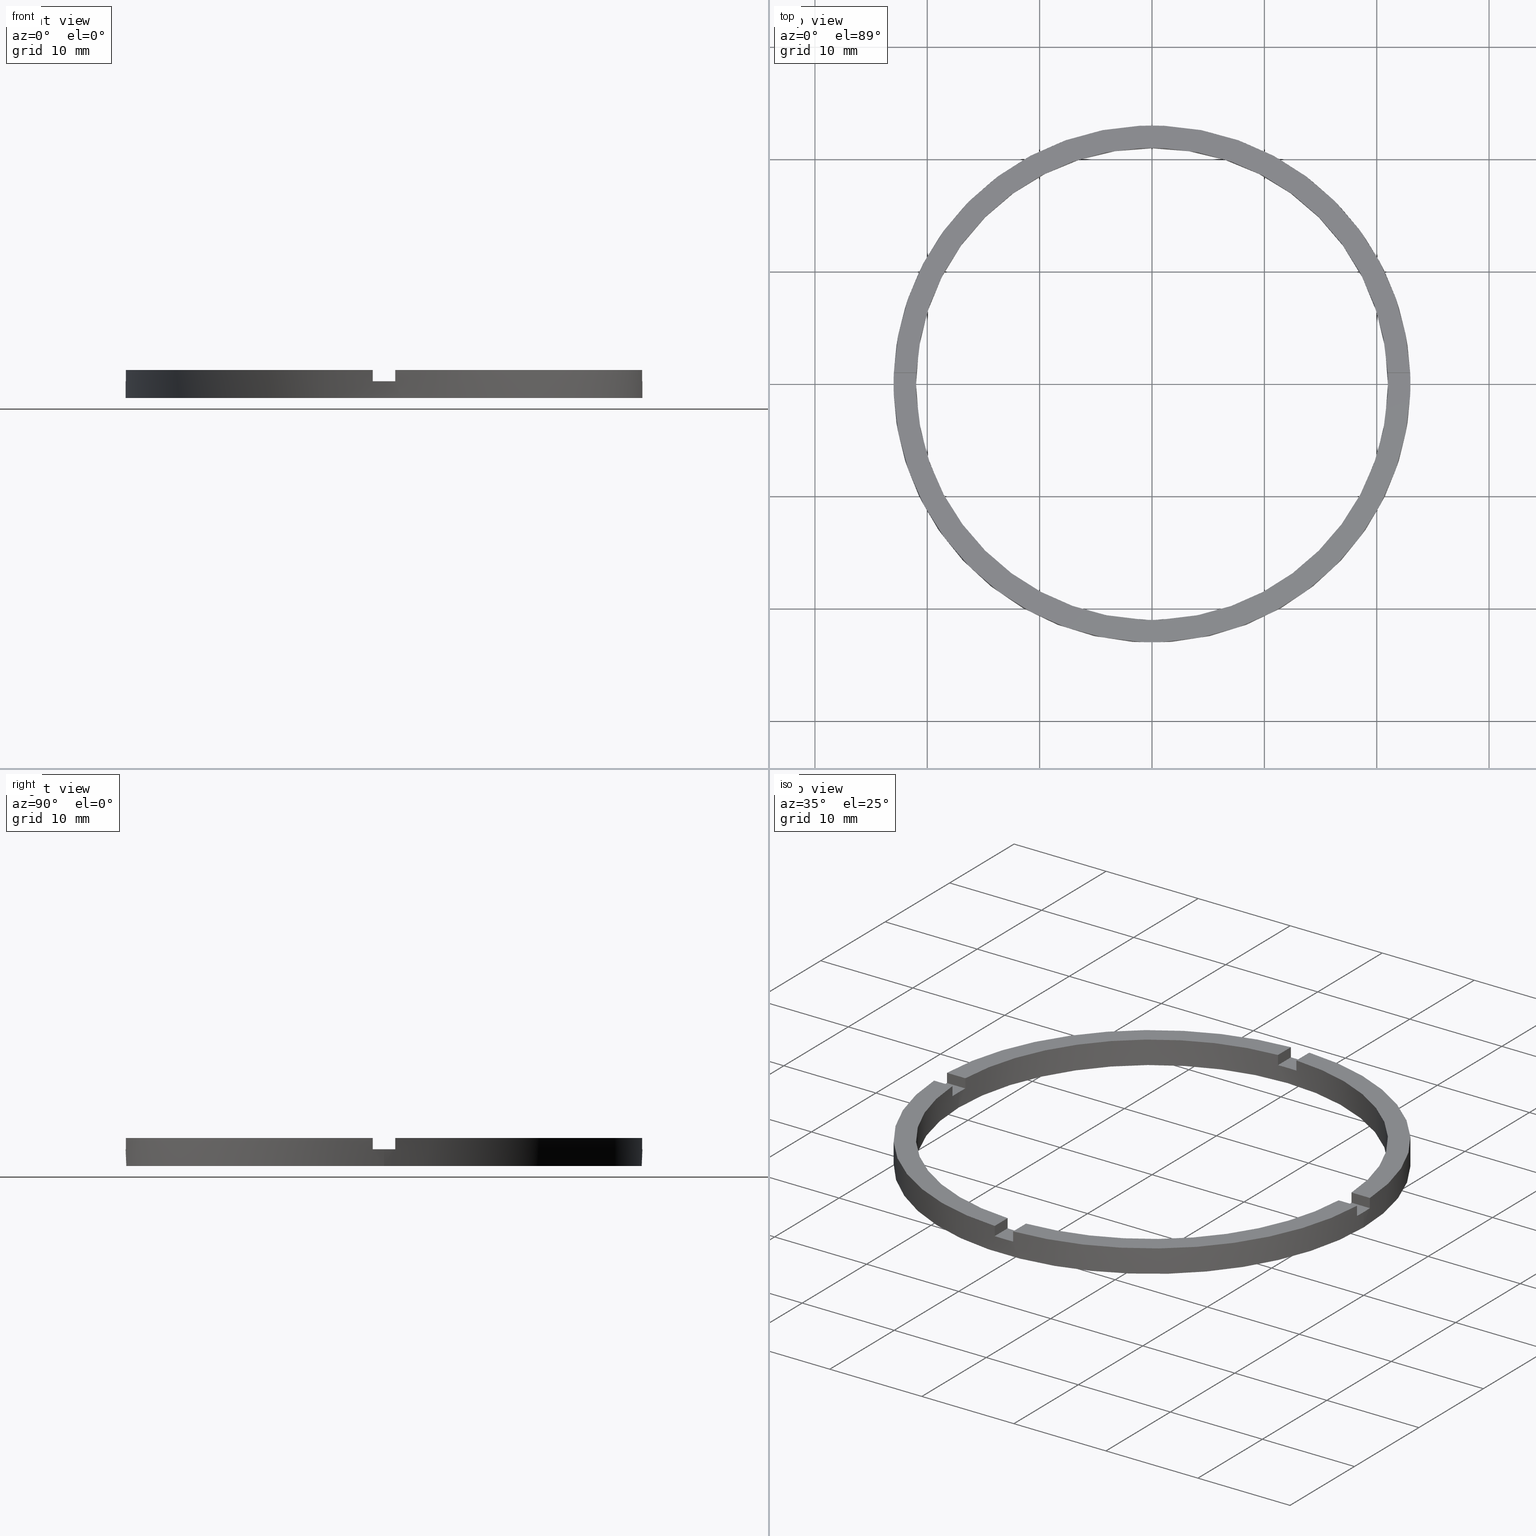
[diagram: canonical four-view strip — front | top / right | iso, engineering-drawing reading convention]
A machine part, canonical four-view strip (front | top / right | iso — engineering-drawing reading convention). The complete STEP part file that produces these views, byte-faithful:
ISO-10303-21;
HEADER;
FILE_DESCRIPTION (( 'STEP AP203' ),
    '1' );
FILE_NAME ('514096.step',
    '2024-12-26T02:37:08',
    ( 'MSI' ),
    ( '' ),
    'SwSTEP 2.0',
    'SolidWorks 2020',
    '' );
FILE_SCHEMA (( 'CONFIG_CONTROL_DESIGN' ));
ENDSEC;

DATA;
#1 = DIRECTION ( 'NONE',  ( -1.000000000000000000, -4.336808689942018352E-17, -0.000000000000000000 ) ) ;
#2 = ORIENTED_EDGE ( 'NONE', *, *, #365, .F. ) ;
#3 = DIRECTION ( 'NONE',  ( 1.000000000000000000, 0.000000000000000000, 0.000000000000000000 ) ) ;
#4 = VERTEX_POINT ( 'NONE', #769 ) ;
#5 = ORIENTED_EDGE ( 'NONE', *, *, #530, .F. ) ;
#6 = DIRECTION ( 'NONE',  ( 1.000000000000000000, 0.000000000000000000, -0.000000000000000000 ) ) ;
#7 = CARTESIAN_POINT ( 'NONE',  ( 0.000000000000000000, 0.000000000000000000, 1.500000000000000000 ) ) ;
#8 = ORIENTED_EDGE ( 'NONE', *, *, #148, .T. ) ;
#9 = CARTESIAN_POINT ( 'NONE',  ( 12.99999999999999467, -1.000000000000158318, 1.500000000000000000 ) ) ;
#10 = ORIENTED_EDGE ( 'NONE', *, *, #23, .T. ) ;
#11 = EDGE_LOOP ( 'NONE', ( #574, #739, #545, #306, #509, #579, #757, #229, #475, #28, #548, #562 ) ) ;
#12 = EDGE_CURVE ( 'NONE', #748, #541, #664, .T. ) ;
#13 = VERTEX_POINT ( 'NONE', #663 ) ;
#14 = VERTEX_POINT ( 'NONE', #88 ) ;
#15 = AXIS2_PLACEMENT_3D ( 'NONE', #333, #526, #594 ) ;
#16 = EDGE_LOOP ( 'NONE', ( #524, #309, #53, #68 ) ) ;
#17 = CARTESIAN_POINT ( 'NONE',  ( 0.000000000000000000, 0.000000000000000000, 2.500000000000000000 ) ) ;
#18 = EDGE_LOOP ( 'NONE', ( #199, #640, #631, #188 ) ) ;
#19 = SECURITY_CLASSIFICATION ( '', '', #336 ) ;
#20 = ORIENTED_EDGE ( 'NONE', *, *, #596, .F. ) ;
#21 = AXIS2_PLACEMENT_3D ( 'NONE', #675, #782, #742 ) ;
#22 = ORIENTED_EDGE ( 'NONE', *, *, #759, .F. ) ;
#23 = EDGE_CURVE ( 'NONE', #231, #578, #102, .T. ) ;
#24 = ORIENTED_EDGE ( 'NONE', *, *, #419, .F. ) ;
#25 = CARTESIAN_POINT ( 'NONE',  ( 20.97617696340304150, 0.9999999999998419042, 2.500000000000000000 ) ) ;
#26 = DIRECTION ( 'NONE',  ( 1.000000000000000000, 1.517883041479706454E-16, 0.000000000000000000 ) ) ;
#27 = AXIS2_PLACEMENT_3D ( 'NONE', #288, #682, #547 ) ;
#28 = ORIENTED_EDGE ( 'NONE', *, *, #172, .T. ) ;
#29 = ADVANCED_FACE ( 'NONE', ( #667 ), #410, .F. ) ;
#30 = DIRECTION ( 'NONE',  ( -0.000000000000000000, -0.000000000000000000, -1.000000000000000000 ) ) ;
#31 = ORIENTED_EDGE ( 'NONE', *, *, #465, .T. ) ;
#32 = DIRECTION ( 'NONE',  ( 0.000000000000000000, 0.000000000000000000, 1.000000000000000000 ) ) ;
#33 = DIRECTION ( 'NONE',  ( 0.000000000000000000, 0.000000000000000000, 1.000000000000000000 ) ) ;
#34 = ADVANCED_FACE ( 'NONE', ( #373 ), #292, .T. ) ;
#35 = EDGE_CURVE ( 'NONE', #267, #528, #377, .T. ) ;
#36 = DIRECTION ( 'NONE',  ( -0.000000000000000000, -0.000000000000000000, -1.000000000000000000 ) ) ;
#37 = ORIENTED_EDGE ( 'NONE', *, *, #612, .T. ) ;
#38 = DIRECTION ( 'NONE',  ( -0.000000000000000000, -0.000000000000000000, -1.000000000000000000 ) ) ;
#39 = ORIENTED_EDGE ( 'NONE', *, *, #207, .F. ) ;
#40 = CARTESIAN_POINT ( 'NONE',  ( 0.000000000000000000, 0.000000000000000000, 2.500000000000000000 ) ) ;
#41 = VERTEX_POINT ( 'NONE', #604 ) ;
#42 = VERTEX_POINT ( 'NONE', #181 ) ;
#43 = APPROVAL_ROLE ( '' ) ;
#44 = AXIS2_PLACEMENT_3D ( 'NONE', #315, #208, #369 ) ;
#45 = CARTESIAN_POINT ( 'NONE',  ( 12.99999999999999467, -1.000000000000158318, 1.500000000000000000 ) ) ;
#46 = EDGE_CURVE ( 'NONE', #459, #42, #381, .T. ) ;
#47 = ORIENTED_EDGE ( 'NONE', *, *, #744, .F. ) ;
#48 = DIRECTION ( 'NONE',  ( 1.000000000000000000, 0.000000000000000000, 0.000000000000000000 ) ) ;
#49 = AXIS2_PLACEMENT_3D ( 'NONE', #316, #36, #215 ) ;
#50 = CARTESIAN_POINT ( 'NONE',  ( -1.000000000000161204, -20.97617696340302373, 1.500000000000000000 ) ) ;
#51 = CARTESIAN_POINT ( 'NONE',  ( -13.00000000000018474, 0.9999999999999763522, 1.500000000000000000 ) ) ;
#52 = DIRECTION ( 'NONE',  ( -1.000000000000000000, -1.734723475976807341E-16, 0.000000000000000000 ) ) ;
#53 = ORIENTED_EDGE ( 'NONE', *, *, #749, .F. ) ;
#54 = ORIENTED_EDGE ( 'NONE', *, *, #261, .F. ) ;
#55 = EDGE_CURVE ( 'NONE', #273, #751, #109, .T. ) ;
#56 = CARTESIAN_POINT ( 'NONE',  ( 0.9999999999998389066, -20.97617696340304150, 1.500000000000000000 ) ) ;
#57 = CARTESIAN_POINT ( 'NONE',  ( -1.000000000000161204, -20.97617696340302373, 2.500000000000000000 ) ) ;
#58 = DIRECTION ( 'NONE',  ( 0.000000000000000000, 0.000000000000000000, 1.000000000000000000 ) ) ;
#59 = DIRECTION ( 'NONE',  ( 0.000000000000000000, 0.000000000000000000, 1.000000000000000000 ) ) ;
#60 = CARTESIAN_POINT ( 'NONE',  ( 0.000000000000000000, 0.000000000000000000, 1.500000000000000000 ) ) ;
#61 = CARTESIAN_POINT ( 'NONE',  ( 0.000000000000000000, 0.000000000000000000, 1.500000000000000000 ) ) ;
#62 = DIRECTION ( 'NONE',  ( -0.000000000000000000, -0.000000000000000000, -1.000000000000000000 ) ) ;
#63 = CC_DESIGN_APPROVAL ( #291, ( #19 ) ) ;
#64 = CARTESIAN_POINT ( 'NONE',  ( -1.000000000000025757, 22.97825058615211091, 2.500000000000000000 ) ) ;
#65 = AXIS2_PLACEMENT_3D ( 'NONE', #61, #242, #444 ) ;
#66 = DATE_AND_TIME ( #78, #82 ) ;
#67 = DATE_AND_TIME ( #343, #615 ) ;
#68 = ORIENTED_EDGE ( 'NONE', *, *, #775, .F. ) ;
#69 = LOCAL_TIME ( 10, 37, 8.000000000000000000, #338 ) ;
#70 = EDGE_CURVE ( 'NONE', #41, #119, #364, .T. ) ;
#71 = PERSON_AND_ORGANIZATION ( #368, #613 ) ;
#72 = AXIS2_PLACEMENT_3D ( 'NONE', #301, #345, #282 ) ;
#73 = CARTESIAN_POINT ( 'NONE',  ( 0.000000000000000000, 0.000000000000000000, 2.500000000000000000 ) ) ;
#74 = EDGE_CURVE ( 'NONE', #779, #740, #394, .T. ) ;
#75 = PERSON_AND_ORGANIZATION ( #368, #613 ) ;
#76 = ADVANCED_FACE ( 'NONE', ( #131 ), #125, .F. ) ;
#77 = EDGE_CURVE ( 'NONE', #398, #397, #113, .T. ) ;
#78 = CALENDAR_DATE ( 2024, 26, 12 ) ;
#79 = CARTESIAN_POINT ( 'NONE',  ( 0.000000000000000000, 0.000000000000000000, 0.000000000000000000 ) ) ;
#80 = CALENDAR_DATE ( 2024, 26, 12 ) ;
#81 = APPROVAL_PERSON_ORGANIZATION ( #75, #496, #43 ) ;
#82 = LOCAL_TIME ( 10, 37, 8.000000000000000000, #325 ) ;
#83 = CARTESIAN_POINT ( 'NONE',  ( 0.000000000000000000, 0.000000000000000000, 2.500000000000000000 ) ) ;
#84 = PERSON_AND_ORGANIZATION ( #368, #613 ) ;
#85 = APPROVAL_DATE_TIME ( #625, #291 ) ;
#86 = CARTESIAN_POINT ( 'NONE',  ( 0.000000000000000000, 0.000000000000000000, 2.500000000000000000 ) ) ;
#87 = PLANE ( 'NONE',  #469 ) ;
#88 = CARTESIAN_POINT ( 'NONE',  ( 0.9999999999998391287, -22.97825058615211802, 2.500000000000000000 ) ) ;
#89 = DIRECTION ( 'NONE',  ( -0.000000000000000000, -0.000000000000000000, -1.000000000000000000 ) ) ;
#90 = CARTESIAN_POINT ( 'NONE',  ( 0.000000000000000000, 0.000000000000000000, 1.500000000000000000 ) ) ;
#91 = CARTESIAN_POINT ( 'NONE',  ( -13.00000000000018474, 0.9999999999999763522, 1.500000000000000000 ) ) ;
#92 = CARTESIAN_POINT ( 'NONE',  ( 0.9999999999998375744, -13.00000000000017941, 2.500000000000000000 ) ) ;
#93 = LINE ( 'NONE', #676, #390 ) ;
#94 = EDGE_CURVE ( 'NONE', #569, #560, #636, .T. ) ;
#95 = CARTESIAN_POINT ( 'NONE',  ( -13.00000000000018474, -1.000000000000023759, 1.500000000000000000 ) ) ;
#96 = LINE ( 'NONE', #189, #105 ) ;
#97 = DIRECTION ( 'NONE',  ( 1.000000000000000000, 0.000000000000000000, 0.000000000000000000 ) ) ;
#98 = DIRECTION ( 'NONE',  ( 0.000000000000000000, 0.000000000000000000, 1.000000000000000000 ) ) ;
#99 = LINE ( 'NONE', #499, #371 ) ;
#100 = ORIENTED_EDGE ( 'NONE', *, *, #696, .F. ) ;
#101 = DIRECTION ( 'NONE',  ( -0.000000000000000000, -0.000000000000000000, -1.000000000000000000 ) ) ;
#102 = LINE ( 'NONE', #773, #396 ) ;
#103 = AXIS2_PLACEMENT_3D ( 'NONE', #646, #770, #223 ) ;
#104 = DIRECTION ( 'NONE',  ( 0.000000000000000000, 0.000000000000000000, 1.000000000000000000 ) ) ;
#105 = VECTOR ( 'NONE', #235, 1000.000000000000000 ) ;
#106 = ORIENTED_EDGE ( 'NONE', *, *, #468, .F. ) ;
#107 = VECTOR ( 'NONE', #38, 1000.000000000000000 ) ;
#108 = EDGE_CURVE ( 'NONE', #720, #577, #93, .T. ) ;
#109 = CIRCLE ( 'NONE', #587, 21.00000000000000000 ) ;
#110 = ORIENTED_EDGE ( 'NONE', *, *, #55, .F. ) ;
#111 = CARTESIAN_POINT ( 'NONE',  ( 0.9999999999999742428, 22.97825058615211447, 2.500000000000000000 ) ) ;
#112 = EDGE_CURVE ( 'NONE', #779, #237, #366, .T. ) ;
#113 = CIRCLE ( 'NONE', #177, 21.00000000000000000 ) ;
#114 = ORIENTED_EDGE ( 'NONE', *, *, #461, .T. ) ;
#115 = CYLINDRICAL_SURFACE ( 'NONE', #495, 23.00000000000000000 ) ;
#116 = AXIS2_PLACEMENT_3D ( 'NONE', #735, #346, #598 ) ;
#117 = ORIENTED_EDGE ( 'NONE', *, *, #108, .T. ) ;
#118 = ORIENTED_EDGE ( 'NONE', *, *, #589, .F. ) ;
#119 = VERTEX_POINT ( 'NONE', #544 ) ;
#120 = ORIENTED_EDGE ( 'NONE', *, *, #323, .T. ) ;
#121 = ORIENTED_EDGE ( 'NONE', *, *, #148, .F. ) ;
#122 = EDGE_LOOP ( 'NONE', ( #761, #564, #272, #47 ) ) ;
#123 = ORIENTED_EDGE ( 'NONE', *, *, #259, .F. ) ;
#124 = VERTEX_POINT ( 'NONE', #599 ) ;
#125 = CYLINDRICAL_SURFACE ( 'NONE', #27, 21.00000000000000000 ) ;
#126 = CARTESIAN_POINT ( 'NONE',  ( -23.00000000000000000, 0.000000000000000000, 2.500000000000000000 ) ) ;
#127 = DIRECTION ( 'NONE',  ( 0.000000000000000000, 0.000000000000000000, 1.000000000000000000 ) ) ;
#128 = FACE_OUTER_BOUND ( 'NONE', #573, .T. ) ;
#129 = CARTESIAN_POINT ( 'NONE',  ( -1.000000000000160982, -22.97825058615210381, 1.500000000000000000 ) ) ;
#130 = ORIENTED_EDGE ( 'NONE', *, *, #323, .F. ) ;
#131 = FACE_OUTER_BOUND ( 'NONE', #462, .T. ) ;
#132 = ORIENTED_EDGE ( 'NONE', *, *, #393, .T. ) ;
#133 = ORIENTED_EDGE ( 'NONE', *, *, #403, .F. ) ;
#134 = EDGE_LOOP ( 'NONE', ( #391, #133 ) ) ;
#135 = ADVANCED_FACE ( 'NONE', ( #386 ), #347, .F. ) ;
#136 = CIRCLE ( 'NONE', #255, 23.00000000000000000 ) ;
#137 = LINE ( 'NONE', #140, #680 ) ;
#138 = VECTOR ( 'NONE', #212, 1000.000000000000000 ) ;
#139 = LINE ( 'NONE', #507, #699 ) ;
#140 = CARTESIAN_POINT ( 'NONE',  ( -1.000000000000160982, -22.97825058615210381, 2.500000000000000000 ) ) ;
#141 = FACE_OUTER_BOUND ( 'NONE', #134, .T. ) ;
#142 = APPROVAL_STATUS ( 'not_yet_approved' ) ;
#143 = CIRCLE ( 'NONE', #593, 23.00000000000000000 ) ;
#144 = LINE ( 'NONE', #126, #440 ) ;
#145 = LINE ( 'NONE', #430, #441 ) ;
#146 = CARTESIAN_POINT ( 'NONE',  ( -13.00000000000018474, -1.000000000000023759, 1.500000000000000000 ) ) ;
#147 = FACE_OUTER_BOUND ( 'NONE', #16, .T. ) ;
#148 = EDGE_CURVE ( 'NONE', #275, #578, #96, .T. ) ;
#149 = APPLICATION_CONTEXT ( 'configuration controlled 3d designs of mechanical parts and assemblies' ) ;
#150 = FACE_BOUND ( 'NONE', #510, .T. ) ;
#151 = VECTOR ( 'NONE', #198, 1000.000000000000000 ) ;
#152 = CARTESIAN_POINT ( 'NONE',  ( -21.00000000000000000, 0.000000000000000000, 2.500000000000000000 ) ) ;
#153 = AXIS2_PLACEMENT_3D ( 'NONE', #217, #532, #406 ) ;
#154 = CC_DESIGN_APPROVAL ( #496, ( #618 ) ) ;
#155 = VECTOR ( 'NONE', #531, 1000.000000000000000 ) ;
#156 = APPLICATION_PROTOCOL_DEFINITION ( 'international standard', 'config_control_design', 1994, #149 ) ;
#157 = LINE ( 'NONE', #644, #432 ) ;
#158 = PLANE ( 'NONE',  #584 ) ;
#159 = AXIS2_PLACEMENT_3D ( 'NONE', #95, #186, #484 ) ;
#160 = VECTOR ( 'NONE', #666, 1000.000000000000000 ) ;
#161 = CARTESIAN_POINT ( 'NONE',  ( 20.97617696340304150, 0.9999999999998419042, 2.500000000000000000 ) ) ;
#162 = CIRCLE ( 'NONE', #556, 23.00000000000000000 ) ;
#163 = CARTESIAN_POINT ( 'NONE',  ( 0.000000000000000000, 0.000000000000000000, 1.500000000000000000 ) ) ;
#164 = CIRCLE ( 'NONE', #65, 23.00000000000000000 ) ;
#165 = DIRECTION ( 'NONE',  ( -4.336808689942018352E-17, 1.000000000000000000, 0.000000000000000000 ) ) ;
#166 = CIRCLE ( 'NONE', #361, 23.00000000000000000 ) ;
#167 = VECTOR ( 'NONE', #318, 1000.000000000000000 ) ;
#168 = CYLINDRICAL_SURFACE ( 'NONE', #263, 21.00000000000000000 ) ;
#169 = DIRECTION ( 'NONE',  ( 1.000000000000000000, 0.000000000000000000, 0.000000000000000000 ) ) ;
#170 = DIRECTION ( 'NONE',  ( 1.000000000000000000, 1.734723475976807341E-16, -0.000000000000000000 ) ) ;
#171 = FACE_OUTER_BOUND ( 'NONE', #18, .T. ) ;
#172 = EDGE_CURVE ( 'NONE', #537, #267, #392, .T. ) ;
#173 = DIRECTION ( 'NONE',  ( 1.000000000000000000, 0.000000000000000000, 0.000000000000000000 ) ) ;
#174 = DIRECTION ( 'NONE',  ( -0.000000000000000000, -0.000000000000000000, -1.000000000000000000 ) ) ;
#175 = VECTOR ( 'NONE', #238, 1000.000000000000000 ) ;
#176 = CARTESIAN_POINT ( 'NONE',  ( 0.9999999999999742428, 13.00000000000000000, 2.500000000000000000 ) ) ;
#177 = AXIS2_PLACEMENT_3D ( 'NONE', #736, #554, #236 ) ;
#178 = FACE_OUTER_BOUND ( 'NONE', #214, .T. ) ;
#179 = LINE ( 'NONE', #362, #447 ) ;
#180 = CARTESIAN_POINT ( 'NONE',  ( -20.97617696340303084, -1.000000000000025091, 1.500000000000000000 ) ) ;
#181 = CARTESIAN_POINT ( 'NONE',  ( -20.97617696340303084, -1.000000000000025091, 2.500000000000000000 ) ) ;
#182 = VECTOR ( 'NONE', #439, 1000.000000000000000 ) ;
#183 = LINE ( 'NONE', #668, #454 ) ;
#184 = CARTESIAN_POINT ( 'NONE',  ( 0.000000000000000000, 0.000000000000000000, 2.500000000000000000 ) ) ;
#185 = LINE ( 'NONE', #92, #717 ) ;
#186 = DIRECTION ( 'NONE',  ( 1.734723475976807341E-16, -1.000000000000000000, 0.000000000000000000 ) ) ;
#187 = LINE ( 'NONE', #91, #175 ) ;
#188 = ORIENTED_EDGE ( 'NONE', *, *, #365, .T. ) ;
#189 = CARTESIAN_POINT ( 'NONE',  ( 22.97825058615210381, -1.000000000000157874, 2.500000000000000000 ) ) ;
#190 = CIRCLE ( 'NONE', #610, 23.00000000000000000 ) ;
#191 = DIRECTION ( 'NONE',  ( -1.734723475976807341E-16, 1.000000000000000000, 0.000000000000000000 ) ) ;
#192 = LINE ( 'NONE', #206, #445 ) ;
#193 = DIRECTION ( 'NONE',  ( -0.000000000000000000, -0.000000000000000000, -1.000000000000000000 ) ) ;
#194 = CIRCLE ( 'NONE', #767, 23.00000000000000000 ) ;
#195 = EDGE_CURVE ( 'NONE', #540, #13, #634, .T. ) ;
#196 = ORIENTED_EDGE ( 'NONE', *, *, #403, .T. ) ;
#197 = ORIENTED_EDGE ( 'NONE', *, *, #195, .F. ) ;
#198 = DIRECTION ( 'NONE',  ( 0.000000000000000000, 1.000000000000000000, 0.000000000000000000 ) ) ;
#199 = ORIENTED_EDGE ( 'NONE', *, *, #585, .F. ) ;
#200 = EDGE_LOOP ( 'NONE', ( #20, #203, #10, #121 ) ) ;
#201 = ORIENTED_EDGE ( 'NONE', *, *, #70, .F. ) ;
#202 = CARTESIAN_POINT ( 'NONE',  ( 0.000000000000000000, 0.000000000000000000, 1.500000000000000000 ) ) ;
#203 = ORIENTED_EDGE ( 'NONE', *, *, #261, .T. ) ;
#204 = ORIENTED_EDGE ( 'NONE', *, *, #766, .T. ) ;
#205 = AXIS2_PLACEMENT_3D ( 'NONE', #778, #434, #6 ) ;
#206 = CARTESIAN_POINT ( 'NONE',  ( 12.99999999999999467, 0.9999999999998416822, 2.500000000000000000 ) ) ;
#207 = EDGE_CURVE ( 'NONE', #273, #540, #99, .T. ) ;
#208 = DIRECTION ( 'NONE',  ( -1.000000000000000000, 0.000000000000000000, 0.000000000000000000 ) ) ;
#209 = EDGE_CURVE ( 'NONE', #42, #528, #382, .T. ) ;
#210 = PLANE ( 'NONE',  #321 ) ;
#211 = PERSON_AND_ORGANIZATION_ROLE ( 'design_supplier' ) ;
#212 = DIRECTION ( 'NONE',  ( -0.000000000000000000, -0.000000000000000000, -1.000000000000000000 ) ) ;
#213 = PERSON_AND_ORGANIZATION_ROLE ( 'creator' ) ;
#214 = EDGE_LOOP ( 'NONE', ( #264, #727, #384, #732, #266, #649 ) ) ;
#215 = DIRECTION ( 'NONE',  ( -1.000000000000000000, 0.000000000000000000, 0.000000000000000000 ) ) ;
#216 = DIRECTION ( 'NONE',  ( 1.000000000000000000, 0.000000000000000000, 0.000000000000000000 ) ) ;
#217 = CARTESIAN_POINT ( 'NONE',  ( 0.000000000000000000, 0.000000000000000000, 2.500000000000000000 ) ) ;
#218 = DIRECTION ( 'NONE',  ( 1.000000000000000000, 4.336808689942018352E-17, 0.000000000000000000 ) ) ;
#219 = AXIS2_PLACEMENT_3D ( 'NONE', #51, #191, #230 ) ;
#220 = DIRECTION ( 'NONE',  ( -0.000000000000000000, 0.000000000000000000, 1.000000000000000000 ) ) ;
#221 = EDGE_CURVE ( 'NONE', #14, #578, #662, .T. ) ;
#222 = ADVANCED_FACE ( 'NONE', ( #128 ), #115, .T. ) ;
#223 = DIRECTION ( 'NONE',  ( 1.000000000000000000, 0.000000000000000000, 0.000000000000000000 ) ) ;
#224 = PLANE ( 'NONE',  #319 ) ;
#225 = AXIS2_PLACEMENT_3D ( 'NONE', #630, #33, #216 ) ;
#226 = EDGE_LOOP ( 'NONE', ( #535, #204, #130, #268 ) ) ;
#227 = CARTESIAN_POINT ( 'NONE',  ( -20.97617696340303439, 0.9999999999999749090, 1.500000000000000000 ) ) ;
#228 = DIRECTION ( 'NONE',  ( 0.000000000000000000, 0.000000000000000000, 1.000000000000000000 ) ) ;
#229 = ORIENTED_EDGE ( 'NONE', *, *, #70, .T. ) ;
#230 = DIRECTION ( 'NONE',  ( -1.000000000000000000, -1.734723475976807341E-16, 0.000000000000000000 ) ) ;
#231 = VERTEX_POINT ( 'NONE', #648 ) ;
#232 = ORIENTED_EDGE ( 'NONE', *, *, #589, .T. ) ;
#233 = VERTEX_POINT ( 'NONE', #281 ) ;
#234 = PLANE ( 'NONE',  #414 ) ;
#235 = DIRECTION ( 'NONE',  ( 0.000000000000000000, 0.000000000000000000, 1.000000000000000000 ) ) ;
#236 = DIRECTION ( 'NONE',  ( 1.000000000000000000, 0.000000000000000000, 0.000000000000000000 ) ) ;
#237 = VERTEX_POINT ( 'NONE', #724 ) ;
#238 = DIRECTION ( 'NONE',  ( -1.000000000000000000, -1.734723475976807341E-16, 0.000000000000000000 ) ) ;
#239 = CARTESIAN_POINT ( 'NONE',  ( 21.00000000000000000, 2.571758278209441661E-15, 1.500000000000000000 ) ) ;
#240 = DIRECTION ( 'NONE',  ( 1.000000000000000000, 0.000000000000000000, -0.000000000000000000 ) ) ;
#241 = DIRECTION ( 'NONE',  ( -1.517883041479706208E-16, 1.000000000000000000, -0.000000000000000000 ) ) ;
#242 = DIRECTION ( 'NONE',  ( 0.000000000000000000, 0.000000000000000000, 1.000000000000000000 ) ) ;
#243 = DIRECTION ( 'NONE',  ( -0.000000000000000000, 0.000000000000000000, 1.000000000000000000 ) ) ;
#244 = ADVANCED_FACE ( 'NONE', ( #147 ), #771, .F. ) ;
#245 = DIRECTION ( 'NONE',  ( -0.000000000000000000, -1.000000000000000000, -0.000000000000000000 ) ) ;
#246 = ORIENTED_EDGE ( 'NONE', *, *, #112, .T. ) ;
#247 = DIRECTION ( 'NONE',  ( -1.000000000000000000, -4.336808689942018352E-17, -0.000000000000000000 ) ) ;
#248 = ORIENTED_EDGE ( 'NONE', *, *, #393, .F. ) ;
#249 = EDGE_CURVE ( 'NONE', #389, #286, #164, .T. ) ;
#250 = ORIENTED_EDGE ( 'NONE', *, *, #35, .F. ) ;
#251 = ORIENTED_EDGE ( 'NONE', *, *, #209, .F. ) ;
#252 = PRODUCT_RELATED_PRODUCT_CATEGORY ( 'detail', '', ( #642 ) ) ;
#253 = ORIENTED_EDGE ( 'NONE', *, *, #207, .T. ) ;
#254 = ADVANCED_FACE ( 'NONE', ( #171 ), #360, .T. ) ;
#255 = AXIS2_PLACEMENT_3D ( 'NONE', #73, #478, #706 ) ;
#256 = CARTESIAN_POINT ( 'NONE',  ( -22.97825058615211091, -1.000000000000025313, 2.500000000000000000 ) ) ;
#257 = ORIENTED_EDGE ( 'NONE', *, *, #74, .T. ) ;
#258 = EDGE_CURVE ( 'NONE', #720, #41, #139, .T. ) ;
#259 = EDGE_CURVE ( 'NONE', #638, #504, #677, .T. ) ;
#260 = ORIENTED_EDGE ( 'NONE', *, *, #94, .T. ) ;
#261 = EDGE_CURVE ( 'NONE', #569, #231, #411, .T. ) ;
#262 = DIRECTION ( 'NONE',  ( 0.000000000000000000, 0.000000000000000000, -1.000000000000000000 ) ) ;
#263 = AXIS2_PLACEMENT_3D ( 'NONE', #83, #327, #760 ) ;
#264 = ORIENTED_EDGE ( 'NONE', *, *, #696, .T. ) ;
#265 = VERTEX_POINT ( 'NONE', #730 ) ;
#266 = ORIENTED_EDGE ( 'NONE', *, *, #94, .F. ) ;
#267 = VERTEX_POINT ( 'NONE', #776 ) ;
#268 = ORIENTED_EDGE ( 'NONE', *, *, #108, .F. ) ;
#269 = PERSON_AND_ORGANIZATION_ROLE ( 'design_owner' ) ;
#270 = EDGE_LOOP ( 'NONE', ( #651, #106, #645, #466 ) ) ;
#271 = EDGE_LOOP ( 'NONE', ( #520, #303, #110, #783 ) ) ;
#272 = ORIENTED_EDGE ( 'NONE', *, *, #423, .F. ) ;
#273 = VERTEX_POINT ( 'NONE', #50 ) ;
#274 = DIRECTION ( 'NONE',  ( 1.000000000000000000, 0.000000000000000000, 0.000000000000000000 ) ) ;
#275 = VERTEX_POINT ( 'NONE', #590 ) ;
#276 = DATE_TIME_ROLE ( 'creation_date' ) ;
#277 = DIRECTION ( 'NONE',  ( 0.000000000000000000, 0.000000000000000000, 1.000000000000000000 ) ) ;
#278 = DIRECTION ( 'NONE',  ( -0.000000000000000000, -0.000000000000000000, -1.000000000000000000 ) ) ;
#279 = DIRECTION ( 'NONE',  ( 1.000000000000000000, 0.000000000000000000, 0.000000000000000000 ) ) ;
#280 = PERSON_AND_ORGANIZATION_ROLE ( 'creator' ) ;
#281 = CARTESIAN_POINT ( 'NONE',  ( 23.00000000000000000, 2.816687638038912352E-15, 0.000000000000000000 ) ) ;
#282 = DIRECTION ( 'NONE',  ( 1.000000000000000000, 0.000000000000000000, 0.000000000000000000 ) ) ;
#283 = ORIENTED_EDGE ( 'NONE', *, *, #350, .T. ) ;
#284 = ADVANCED_FACE ( 'NONE', ( #700 ), #158, .F. ) ;
#285 = AXIS2_PLACEMENT_3D ( 'NONE', #202, #243, #446 ) ;
#286 = VERTEX_POINT ( 'NONE', #521 ) ;
#287 = CARTESIAN_POINT ( 'NONE',  ( 0.000000000000000000, 0.000000000000000000, 2.500000000000000000 ) ) ;
#288 = CARTESIAN_POINT ( 'NONE',  ( 0.000000000000000000, 0.000000000000000000, 2.500000000000000000 ) ) ;
#289 =( LENGTH_UNIT ( ) NAMED_UNIT ( * ) SI_UNIT ( .MILLI., .METRE. ) );
#290 = DIRECTION ( 'NONE',  ( 4.336808689942018352E-17, -1.000000000000000000, 0.000000000000000000 ) ) ;
#291 = APPROVAL ( #591, 'δָ��' ) ;
#292 = PLANE ( 'NONE',  #622 ) ;
#293 = AXIS2_PLACEMENT_3D ( 'NONE', #745, #297, #348 ) ;
#294 = CC_DESIGN_PERSON_AND_ORGANIZATION_ASSIGNMENT ( #354, #213, ( #618 ) ) ;
#295 = CARTESIAN_POINT ( 'NONE',  ( 0.000000000000000000, 0.000000000000000000, 2.500000000000000000 ) ) ;
#296 = DIRECTION ( 'NONE',  ( 1.000000000000000000, 0.000000000000000000, 0.000000000000000000 ) ) ;
#297 = DIRECTION ( 'NONE',  ( 0.000000000000000000, 0.000000000000000000, 1.000000000000000000 ) ) ;
#298 = EDGE_CURVE ( 'NONE', #537, #119, #425, .T. ) ;
#299 = AXIS2_PLACEMENT_3D ( 'NONE', #60, #58, #536 ) ;
#300 = EDGE_LOOP ( 'NONE', ( #22, #539, #232, #310 ) ) ;
#301 = CARTESIAN_POINT ( 'NONE',  ( 0.000000000000000000, 0.000000000000000000, 2.500000000000000000 ) ) ;
#302 = ORIENTED_EDGE ( 'NONE', *, *, #249, .F. ) ;
#303 = ORIENTED_EDGE ( 'NONE', *, *, #743, .T. ) ;
#304 = CC_DESIGN_APPROVAL ( #322, ( #458 ) ) ;
#305 = CARTESIAN_POINT ( 'NONE',  ( -13.00000000000018474, -1.000000000000023759, 2.500000000000000000 ) ) ;
#306 = ORIENTED_EDGE ( 'NONE', *, *, #581, .T. ) ;
#307 = DIRECTION ( 'NONE',  ( 1.000000000000000000, 0.000000000000000000, -0.000000000000000000 ) ) ;
#308 = EDGE_LOOP ( 'NONE', ( #246, #314, #672, #250, #669, #674 ) ) ;
#309 = ORIENTED_EDGE ( 'NONE', *, *, #12, .T. ) ;
#310 = ORIENTED_EDGE ( 'NONE', *, *, #74, .F. ) ;
#311 = DIRECTION ( 'NONE',  ( 1.000000000000000000, 0.000000000000000000, -0.000000000000000000 ) ) ;
#312 = ORIENTED_EDGE ( 'NONE', *, *, #523, .F. ) ;
#313 = PLANE ( 'NONE',  #44 ) ;
#314 = ORIENTED_EDGE ( 'NONE', *, *, #419, .T. ) ;
#315 = CARTESIAN_POINT ( 'NONE',  ( -1.000000000000025757, 13.00000000000000000, 1.500000000000000000 ) ) ;
#316 = CARTESIAN_POINT ( 'NONE',  ( 0.000000000000000000, 0.000000000000000000, 2.500000000000000000 ) ) ;
#317 = DIRECTION ( 'NONE',  ( -1.517883041479706454E-16, 1.000000000000000000, 0.000000000000000000 ) ) ;
#318 = DIRECTION ( 'NONE',  ( 1.000000000000000000, 1.734723475976807341E-16, -0.000000000000000000 ) ) ;
#319 = AXIS2_PLACEMENT_3D ( 'NONE', #611, #59, #503 ) ;
#320 = CC_DESIGN_PERSON_AND_ORGANIZATION_ASSIGNMENT ( #84, #280, ( #458 ) ) ;
#321 = AXIS2_PLACEMENT_3D ( 'NONE', #575, #529, #262 ) ;
#322 = APPROVAL ( #142, 'δָ��' ) ;
#323 = EDGE_CURVE ( 'NONE', #577, #504, #420, .T. ) ;
#324 = DIRECTION ( 'NONE',  ( 1.000000000000000000, 0.000000000000000000, -0.000000000000000000 ) ) ;
#325 = COORDINATED_UNIVERSAL_TIME_OFFSET ( 8, 0, .AHEAD. ) ;
#326 = COORDINATED_UNIVERSAL_TIME_OFFSET ( 8, 0, .AHEAD. ) ;
#327 = DIRECTION ( 'NONE',  ( -0.000000000000000000, -0.000000000000000000, -1.000000000000000000 ) ) ;
#328 = ORIENTED_EDGE ( 'NONE', *, *, #77, .F. ) ;
#329 = CARTESIAN_POINT ( 'NONE',  ( 0.9999999999998375744, -13.00000000000017941, 1.500000000000000000 ) ) ;
#330 = PRODUCT_DEFINITION_SHAPE ( 'NONE', 'NONE',  #618 ) ;
#331 = LOCAL_TIME ( 10, 37, 8.000000000000000000, #621 ) ;
#332 = LOCAL_TIME ( 10, 37, 8.000000000000000000, #326 ) ;
#333 = CARTESIAN_POINT ( 'NONE',  ( 0.000000000000000000, 0.000000000000000000, 1.500000000000000000 ) ) ;
#334 = CALENDAR_DATE ( 2024, 26, 12 ) ;
#335 = DIRECTION ( 'NONE',  ( -0.000000000000000000, -1.000000000000000000, -0.000000000000000000 ) ) ;
#336 = SECURITY_CLASSIFICATION_LEVEL ( 'unclassified' ) ;
#337 = ORIENTED_EDGE ( 'NONE', *, *, #530, .T. ) ;
#338 = COORDINATED_UNIVERSAL_TIME_OFFSET ( 8, 0, .AHEAD. ) ;
#339 = CARTESIAN_POINT ( 'NONE',  ( 20.97617696340304150, 0.9999999999998419042, 1.500000000000000000 ) ) ;
#340 = PERSON_AND_ORGANIZATION ( #368, #613 ) ;
#341 = CARTESIAN_POINT ( 'NONE',  ( -1.000000000000025757, 20.97617696340303084, 1.500000000000000000 ) ) ;
#342 = DIRECTION ( 'NONE',  ( 1.517883041479706208E-16, -1.000000000000000000, 0.000000000000000000 ) ) ;
#343 = CALENDAR_DATE ( 2024, 26, 12 ) ;
#344 =( NAMED_UNIT ( * ) PLANE_ANGLE_UNIT ( ) SI_UNIT ( $, .RADIAN. ) );
#345 = DIRECTION ( 'NONE',  ( 0.000000000000000000, 0.000000000000000000, 1.000000000000000000 ) ) ;
#346 = DIRECTION ( 'NONE',  ( -0.000000000000000000, 0.000000000000000000, 1.000000000000000000 ) ) ;
#347 = PLANE ( 'NONE',  #21 ) ;
#348 = DIRECTION ( 'NONE',  ( 1.000000000000000000, 0.000000000000000000, 0.000000000000000000 ) ) ;
#349 = APPROVAL_DATE_TIME ( #623, #322 ) ;
#350 = EDGE_CURVE ( 'NONE', #237, #124, #144, .T. ) ;
#351 = ORIENTED_EDGE ( 'NONE', *, *, #620, .T. ) ;
#352 = DATE_AND_TIME ( #624, #331 ) ;
#353 = CARTESIAN_POINT ( 'NONE',  ( 20.97617696340302373, -1.000000000000158096, 1.500000000000000000 ) ) ;
#354 = PERSON_AND_ORGANIZATION ( #368, #613 ) ;
#355 = PERSON_AND_ORGANIZATION ( #368, #613 ) ;
#356 = COORDINATED_UNIVERSAL_TIME_OFFSET ( 8, 0, .AHEAD. ) ;
#357 = SHAPE_DEFINITION_REPRESENTATION ( #330, #480 ) ;
#358 = DIRECTION ( 'NONE',  ( 1.000000000000000000, 4.336808689942018352E-17, 0.000000000000000000 ) ) ;
#359 = CARTESIAN_POINT ( 'NONE',  ( 0.000000000000000000, 0.000000000000000000, 1.500000000000000000 ) ) ;
#360 = PLANE ( 'NONE',  #617 ) ;
#361 = AXIS2_PLACEMENT_3D ( 'NONE', #295, #421, #97 ) ;
#362 = CARTESIAN_POINT ( 'NONE',  ( 23.00000000000000000, 2.816687638038912352E-15, 2.500000000000000000 ) ) ;
#363 = ADVANCED_FACE ( 'NONE', ( #686 ), #712, .T. ) ;
#364 = CIRCLE ( 'NONE', #558, 21.00000000000000000 ) ;
#365 = EDGE_CURVE ( 'NONE', #479, #755, #136, .T. ) ;
#366 = CIRCLE ( 'NONE', #457, 23.00000000000000000 ) ;
#367 = DIRECTION ( 'NONE',  ( -1.000000000000000000, -4.336808689942018352E-17, 0.000000000000000000 ) ) ;
#368 = PERSON ( 'δָ��', 'δָ��', 'δָ��', ('δָ��'), ('δָ��'), ('δָ��') ) ;
#369 = DIRECTION ( 'NONE',  ( 0.000000000000000000, 0.000000000000000000, 1.000000000000000000 ) ) ;
#370 = ORIENTED_EDGE ( 'NONE', *, *, #620, .F. ) ;
#371 = VECTOR ( 'NONE', #602, 1000.000000000000000 ) ;
#372 = DESIGN_CONTEXT ( 'detailed design', #149, 'design' ) ;
#373 = FACE_OUTER_BOUND ( 'NONE', #308, .T. ) ;
#374 = ADVANCED_FACE ( 'NONE', ( #404 ), #476, .T. ) ;
#375 = VECTOR ( 'NONE', #278, 1000.000000000000000 ) ;
#376 = ORIENTED_EDGE ( 'NONE', *, *, #46, .F. ) ;
#377 = CIRCLE ( 'NONE', #299, 21.00000000000000000 ) ;
#378 = ORIENTED_EDGE ( 'NONE', *, *, #77, .T. ) ;
#379 = EDGE_LOOP ( 'NONE', ( #37, #337, #605, #512 ) ) ;
#380 = ORIENTED_EDGE ( 'NONE', *, *, #671, .F. ) ;
#381 = LINE ( 'NONE', #305, #385 ) ;
#382 = LINE ( 'NONE', #492, #375 ) ;
#383 = ORIENTED_EDGE ( 'NONE', *, *, #516, .F. ) ;
#384 = ORIENTED_EDGE ( 'NONE', *, *, #749, .T. ) ;
#385 = VECTOR ( 'NONE', #170, 1000.000000000000000 ) ;
#386 = FACE_OUTER_BOUND ( 'NONE', #490, .T. ) ;
#387 = VERTEX_POINT ( 'NONE', #395 ) ;
#388 = CARTESIAN_POINT ( 'NONE',  ( 21.00000000000000000, 2.571758278209441661E-15, 0.000000000000000000 ) ) ;
#389 = VERTEX_POINT ( 'NONE', #534 ) ;
#390 = VECTOR ( 'NONE', #501, 1000.000000000000000 ) ;
#391 = ORIENTED_EDGE ( 'NONE', *, *, #465, .F. ) ;
#392 = CIRCLE ( 'NONE', #399, 21.00000000000000000 ) ;
#393 = EDGE_CURVE ( 'NONE', #726, #13, #137, .T. ) ;
#394 = LINE ( 'NONE', #493, #653 ) ;
#395 = CARTESIAN_POINT ( 'NONE',  ( 0.9999999999998391287, -22.97825058615211802, 1.500000000000000000 ) ) ;
#396 = VECTOR ( 'NONE', #218, 1000.000000000000000 ) ;
#397 = VERTEX_POINT ( 'NONE', #388 ) ;
#398 = VERTEX_POINT ( 'NONE', #754 ) ;
#399 = AXIS2_PLACEMENT_3D ( 'NONE', #431, #98, #422 ) ;
#400 = FACE_OUTER_BOUND ( 'NONE', #764, .T. ) ;
#401 = DIRECTION ( 'NONE',  ( 0.000000000000000000, 0.000000000000000000, 1.000000000000000000 ) ) ;
#402 = LINE ( 'NONE', #146, #167 ) ;
#403 = EDGE_CURVE ( 'NONE', #233, #124, #162, .T. ) ;
#404 = FACE_OUTER_BOUND ( 'NONE', #270, .T. ) ;
#405 = CC_DESIGN_PERSON_AND_ORGANIZATION_ASSIGNMENT ( #607, #269, ( #642 ) ) ;
#406 = DIRECTION ( 'NONE',  ( 1.000000000000000000, 0.000000000000000000, 0.000000000000000000 ) ) ;
#407 = CARTESIAN_POINT ( 'NONE',  ( -1.000000000000025757, 13.00000000000000000, 1.500000000000000000 ) ) ;
#408 = LINE ( 'NONE', #781, #160 ) ;
#409 = EDGE_CURVE ( 'NONE', #14, #387, #693, .T. ) ;
#410 = PLANE ( 'NONE',  #159 ) ;
#411 = LINE ( 'NONE', #659, #155 ) ;
#412 = DIRECTION ( 'NONE',  ( -0.000000000000000000, -0.000000000000000000, -1.000000000000000000 ) ) ;
#413 = VECTOR ( 'NONE', #104, 1000.000000000000000 ) ;
#414 = AXIS2_PLACEMENT_3D ( 'NONE', #287, #543, #498 ) ;
#415 = CARTESIAN_POINT ( 'NONE',  ( 12.99999999999999467, 0.9999999999998416822, 1.500000000000000000 ) ) ;
#416 = ADVANCED_FACE ( 'NONE', ( #400 ), #210, .F. ) ;
#417 = CARTESIAN_POINT ( 'NONE',  ( 22.97825058615210381, -1.000000000000157874, 2.500000000000000000 ) ) ;
#418 = FACE_OUTER_BOUND ( 'NONE', #553, .T. ) ;
#419 = EDGE_CURVE ( 'NONE', #237, #467, #702, .T. ) ;
#420 = LINE ( 'NONE', #407, #684 ) ;
#421 = DIRECTION ( 'NONE',  ( 0.000000000000000000, 0.000000000000000000, 1.000000000000000000 ) ) ;
#422 = DIRECTION ( 'NONE',  ( 1.000000000000000000, 0.000000000000000000, 0.000000000000000000 ) ) ;
#423 = EDGE_CURVE ( 'NONE', #467, #528, #402, .T. ) ;
#424 = CIRCLE ( 'NONE', #72, 21.00000000000000000 ) ;
#425 = LINE ( 'NONE', #633, #429 ) ;
#426 =( NAMED_UNIT ( * ) SI_UNIT ( $, .STERADIAN. ) SOLID_ANGLE_UNIT ( ) );
#427 = CARTESIAN_POINT ( 'NONE',  ( 0.000000000000000000, 0.000000000000000000, 0.000000000000000000 ) ) ;
#428 = FACE_OUTER_BOUND ( 'NONE', #11, .T. ) ;
#429 = VECTOR ( 'NONE', #277, 1000.000000000000000 ) ;
#430 = CARTESIAN_POINT ( 'NONE',  ( 0.9999999999998389066, -20.97617696340304150, 2.500000000000000000 ) ) ;
#431 = CARTESIAN_POINT ( 'NONE',  ( 0.000000000000000000, 0.000000000000000000, 1.500000000000000000 ) ) ;
#432 = VECTOR ( 'NONE', #491, 1000.000000000000000 ) ;
#433 = LINE ( 'NONE', #670, #698 ) ;
#434 = DIRECTION ( 'NONE',  ( 0.000000000000000000, -0.000000000000000000, 1.000000000000000000 ) ) ;
#435 = CIRCLE ( 'NONE', #746, 21.00000000000000000 ) ;
#436 = CIRCLE ( 'NONE', #563, 21.00000000000000000 ) ;
#437 = LINE ( 'NONE', #9, #701 ) ;
#438 = CYLINDRICAL_SURFACE ( 'NONE', #49, 23.00000000000000000 ) ;
#439 = DIRECTION ( 'NONE',  ( 0.000000000000000000, 0.000000000000000000, 1.000000000000000000 ) ) ;
#440 = VECTOR ( 'NONE', #412, 1000.000000000000000 ) ;
#441 = VECTOR ( 'NONE', #89, 1000.000000000000000 ) ;
#442 = VECTOR ( 'NONE', #752, 1000.000000000000000 ) ;
#443 = DIRECTION ( 'NONE',  ( 0.000000000000000000, 0.000000000000000000, 1.000000000000000000 ) ) ;
#444 = DIRECTION ( 'NONE',  ( 1.000000000000000000, 0.000000000000000000, 0.000000000000000000 ) ) ;
#445 = VECTOR ( 'NONE', #247, 1000.000000000000000 ) ;
#446 = DIRECTION ( 'NONE',  ( 1.000000000000000000, 0.000000000000000000, 0.000000000000000000 ) ) ;
#447 = VECTOR ( 'NONE', #193, 1000.000000000000000 ) ;
#448 = VECTOR ( 'NONE', #62, 1000.000000000000000 ) ;
#449 = VECTOR ( 'NONE', #101, 1000.000000000000000 ) ;
#450 = EDGE_CURVE ( 'NONE', #560, #397, #678, .T. ) ;
#451 = LINE ( 'NONE', #750, #460 ) ;
#452 = ADVANCED_FACE ( 'NONE', ( #418 ), #438, .T. ) ;
#453 = DIRECTION ( 'NONE',  ( 0.000000000000000000, 0.000000000000000000, 1.000000000000000000 ) ) ;
#454 = VECTOR ( 'NONE', #600, 1000.000000000000000 ) ;
#455 = ORIENTED_EDGE ( 'NONE', *, *, #657, .F. ) ;
#456 = FACE_OUTER_BOUND ( 'NONE', #200, .T. ) ;
#457 = AXIS2_PLACEMENT_3D ( 'NONE', #7, #443, #296 ) ;
#458 = PRODUCT_DEFINITION_FORMATION_WITH_SPECIFIED_SOURCE ( '�κ�', '', #642, .NOT_KNOWN. ) ;
#459 = VERTEX_POINT ( 'NONE', #723 ) ;
#460 = VECTOR ( 'NONE', #1, 1000.000000000000000 ) ;
#461 = EDGE_CURVE ( 'NONE', #397, #398, #436, .T. ) ;
#462 = EDGE_LOOP ( 'NONE', ( #260, #768, #328, #518, #513, #251, #351, #39, #525, #5, #522, #54 ) ) ;
#463 = FACE_OUTER_BOUND ( 'NONE', #226, .T. ) ;
#464 = ORIENTED_EDGE ( 'NONE', *, *, #112, .F. ) ;
#465 = EDGE_CURVE ( 'NONE', #124, #233, #143, .T. ) ;
#466 = ORIENTED_EDGE ( 'NONE', *, *, #221, .T. ) ;
#467 = VERTEX_POINT ( 'NONE', #580 ) ;
#468 = EDGE_CURVE ( 'NONE', #265, #231, #681, .T. ) ;
#469 = AXIS2_PLACEMENT_3D ( 'NONE', #45, #290, #358 ) ;
#470 = ORIENTED_EDGE ( 'NONE', *, *, #775, .T. ) ;
#471 = DIRECTION ( 'NONE',  ( 0.000000000000000000, 0.000000000000000000, 1.000000000000000000 ) ) ;
#472 = ORIENTED_EDGE ( 'NONE', *, *, #258, .F. ) ;
#473 = ORIENTED_EDGE ( 'NONE', *, *, #500, .F. ) ;
#474 = APPLICATION_PROTOCOL_DEFINITION ( 'international standard', 'config_control_design', 1994, #586 ) ;
#475 = ORIENTED_EDGE ( 'NONE', *, *, #298, .F. ) ;
#476 = PLANE ( 'NONE',  #741 ) ;
#477 = CARTESIAN_POINT ( 'NONE',  ( 0.000000000000000000, 0.000000000000000000, 0.000000000000000000 ) ) ;
#478 = DIRECTION ( 'NONE',  ( 0.000000000000000000, 0.000000000000000000, 1.000000000000000000 ) ) ;
#479 = VERTEX_POINT ( 'NONE', #637 ) ;
#480 = ADVANCED_BREP_SHAPE_REPRESENTATION ( '514096', ( #780, #502 ), #514 ) ;
#481 = CC_DESIGN_SECURITY_CLASSIFICATION ( #19, ( #458 ) ) ;
#482 = CARTESIAN_POINT ( 'NONE',  ( 0.000000000000000000, 0.000000000000000000, 0.000000000000000000 ) ) ;
#483 = ADVANCED_FACE ( 'NONE', ( #428 ), #168, .F. ) ;
#484 = DIRECTION ( 'NONE',  ( 1.000000000000000000, 1.734723475976807341E-16, 0.000000000000000000 ) ) ;
#485 = CARTESIAN_POINT ( 'NONE',  ( 0.000000000000000000, 0.000000000000000000, 2.500000000000000000 ) ) ;
#486 = DIRECTION ( 'NONE',  ( 1.000000000000000000, 0.000000000000000000, 0.000000000000000000 ) ) ;
#487 = APPROVAL_ROLE ( '' ) ;
#488 = CARTESIAN_POINT ( 'NONE',  ( 0.000000000000000000, 0.000000000000000000, 1.500000000000000000 ) ) ;
#489 = EDGE_CURVE ( 'NONE', #267, #398, #687, .T. ) ;
#490 = EDGE_LOOP ( 'NONE', ( #312, #253, #572, #248 ) ) ;
#491 = DIRECTION ( 'NONE',  ( 0.000000000000000000, 1.000000000000000000, 0.000000000000000000 ) ) ;
#492 = CARTESIAN_POINT ( 'NONE',  ( -20.97617696340303084, -1.000000000000025091, 2.500000000000000000 ) ) ;
#493 = CARTESIAN_POINT ( 'NONE',  ( -22.97825058615211447, 0.9999999999999746869, 2.500000000000000000 ) ) ;
#494 = CARTESIAN_POINT ( 'NONE',  ( 0.9999999999999742428, 22.97825058615211447, 2.500000000000000000 ) ) ;
#495 = AXIS2_PLACEMENT_3D ( 'NONE', #86, #174, #592 ) ;
#496 = APPROVAL ( #708, 'δָ��' ) ;
#497 = EDGE_CURVE ( 'NONE', #560, #541, #435, .T. ) ;
#498 = DIRECTION ( 'NONE',  ( 1.000000000000000000, 0.000000000000000000, -0.000000000000000000 ) ) ;
#499 = CARTESIAN_POINT ( 'NONE',  ( -1.000000000000161204, -20.97617696340302373, 2.500000000000000000 ) ) ;
#500 = EDGE_CURVE ( 'NONE', #638, #4, #157, .T. ) ;
#501 = DIRECTION ( 'NONE',  ( -0.000000000000000000, -0.000000000000000000, -1.000000000000000000 ) ) ;
#502 = AXIS2_PLACEMENT_3D ( 'NONE', #482, #32, #173 ) ;
#503 = DIRECTION ( 'NONE',  ( 1.000000000000000000, 0.000000000000000000, -0.000000000000000000 ) ) ;
#504 = VERTEX_POINT ( 'NONE', #341 ) ;
#505 = DIRECTION ( 'NONE',  ( 0.000000000000000000, -0.000000000000000000, 1.000000000000000000 ) ) ;
#506 = EDGE_CURVE ( 'NONE', #720, #740, #166, .T. ) ;
#507 = CARTESIAN_POINT ( 'NONE',  ( -1.000000000000025757, 13.00000000000000000, 2.500000000000000000 ) ) ;
#508 = CARTESIAN_POINT ( 'NONE',  ( 0.000000000000000000, 0.000000000000000000, 1.500000000000000000 ) ) ;
#509 = ORIENTED_EDGE ( 'NONE', *, *, #561, .F. ) ;
#510 = EDGE_LOOP ( 'NONE', ( #378, #114 ) ) ;
#511 = ADVANCED_FACE ( 'NONE', ( #697 ), #234, .T. ) ;
#512 = ORIENTED_EDGE ( 'NONE', *, *, #409, .F. ) ;
#513 = ORIENTED_EDGE ( 'NONE', *, *, #35, .T. ) ;
#514 =( GEOMETRIC_REPRESENTATION_CONTEXT ( 3 ) GLOBAL_UNCERTAINTY_ASSIGNED_CONTEXT ( ( #614 ) ) GLOBAL_UNIT_ASSIGNED_CONTEXT ( ( #289, #344, #426 ) ) REPRESENTATION_CONTEXT ( 'NONE', 'WORKASPACE' ) );
#515 = DIRECTION ( 'NONE',  ( 1.000000000000000000, 0.000000000000000000, -0.000000000000000000 ) ) ;
#516 = EDGE_CURVE ( 'NONE', #726, #387, #683, .T. ) ;
#517 = AXIS2_PLACEMENT_3D ( 'NONE', #427, #549, #307 ) ;
#518 = ORIENTED_EDGE ( 'NONE', *, *, #489, .F. ) ;
#519 = DIRECTION ( 'NONE',  ( -0.000000000000000000, -0.000000000000000000, -1.000000000000000000 ) ) ;
#520 = ORIENTED_EDGE ( 'NONE', *, *, #516, .T. ) ;
#521 = CARTESIAN_POINT ( 'NONE',  ( 22.97825058615211802, 0.9999999999998421263, 1.500000000000000000 ) ) ;
#522 = ORIENTED_EDGE ( 'NONE', *, *, #468, .T. ) ;
#523 = EDGE_CURVE ( 'NONE', #273, #726, #408, .T. ) ;
#524 = ORIENTED_EDGE ( 'NONE', *, *, #713, .T. ) ;
#525 = ORIENTED_EDGE ( 'NONE', *, *, #55, .T. ) ;
#526 = DIRECTION ( 'NONE',  ( 0.000000000000000000, 0.000000000000000000, 1.000000000000000000 ) ) ;
#527 = ORIENTED_EDGE ( 'NONE', *, *, #350, .F. ) ;
#528 = VERTEX_POINT ( 'NONE', #180 ) ;
#529 = DIRECTION ( 'NONE',  ( 1.000000000000000000, -0.000000000000000000, 0.000000000000000000 ) ) ;
#530 = EDGE_CURVE ( 'NONE', #265, #751, #145, .T. ) ;
#531 = DIRECTION ( 'NONE',  ( 0.000000000000000000, 0.000000000000000000, 1.000000000000000000 ) ) ;
#532 = DIRECTION ( 'NONE',  ( 0.000000000000000000, 0.000000000000000000, 1.000000000000000000 ) ) ;
#533 = ORIENTED_EDGE ( 'NONE', *, *, #704, .F. ) ;
#534 = CARTESIAN_POINT ( 'NONE',  ( 23.00000000000000000, 2.816687638038912352E-15, 1.500000000000000000 ) ) ;
#535 = ORIENTED_EDGE ( 'NONE', *, *, #258, .T. ) ;
#536 = DIRECTION ( 'NONE',  ( 1.000000000000000000, 0.000000000000000000, 0.000000000000000000 ) ) ;
#537 = VERTEX_POINT ( 'NONE', #227 ) ;
#538 = DIRECTION ( 'NONE',  ( 1.000000000000000000, 0.000000000000000000, 0.000000000000000000 ) ) ;
#539 = ORIENTED_EDGE ( 'NONE', *, *, #298, .T. ) ;
#540 = VERTEX_POINT ( 'NONE', #57 ) ;
#541 = VERTEX_POINT ( 'NONE', #339 ) ;
#542 = ORIENTED_EDGE ( 'NONE', *, *, #585, .T. ) ;
#543 = DIRECTION ( 'NONE',  ( 0.000000000000000000, 0.000000000000000000, 1.000000000000000000 ) ) ;
#544 = CARTESIAN_POINT ( 'NONE',  ( -20.97617696340303439, 0.9999999999999749090, 2.500000000000000000 ) ) ;
#545 = ORIENTED_EDGE ( 'NONE', *, *, #12, .F. ) ;
#546 = ORIENTED_EDGE ( 'NONE', *, *, #500, .T. ) ;
#547 = DIRECTION ( 'NONE',  ( -1.000000000000000000, 0.000000000000000000, 0.000000000000000000 ) ) ;
#548 = ORIENTED_EDGE ( 'NONE', *, *, #489, .T. ) ;
#549 = DIRECTION ( 'NONE',  ( 0.000000000000000000, 0.000000000000000000, 1.000000000000000000 ) ) ;
#550 = CLOSED_SHELL ( 'NONE', ( #76, #452, #363, #254, #374, #511, #570, #222, #483, #29, #758, #34, #284, #135, #692, #244, #654, #629, #733, #416, #597 ) ) ;
#551 = ORIENTED_EDGE ( 'NONE', *, *, #744, .T. ) ;
#552 = CARTESIAN_POINT ( 'NONE',  ( -1.000000000000162537, -13.00000000000017941, 2.500000000000000000 ) ) ;
#553 = EDGE_LOOP ( 'NONE', ( #302, #639, #196, #527, #464, #257, #716, #117, #380, #650, #2, #470 ) ) ;
#554 = DIRECTION ( 'NONE',  ( 0.000000000000000000, 0.000000000000000000, 1.000000000000000000 ) ) ;
#555 = CC_DESIGN_PERSON_AND_ORGANIZATION_ASSIGNMENT ( #626, #211, ( #458 ) ) ;
#556 = AXIS2_PLACEMENT_3D ( 'NONE', #477, #401, #48 ) ;
#557 = DIRECTION ( 'NONE',  ( 1.000000000000000000, 0.000000000000000000, 0.000000000000000000 ) ) ;
#558 = AXIS2_PLACEMENT_3D ( 'NONE', #566, #228, #486 ) ;
#559 = CARTESIAN_POINT ( 'NONE',  ( -1.000000000000025757, 22.97825058615211091, 1.500000000000000000 ) ) ;
#560 = VERTEX_POINT ( 'NONE', #239 ) ;
#561 = EDGE_CURVE ( 'NONE', #638, #576, #688, .T. ) ;
#562 = ORIENTED_EDGE ( 'NONE', *, *, #461, .F. ) ;
#563 = AXIS2_PLACEMENT_3D ( 'NONE', #583, #471, #169 ) ;
#564 = ORIENTED_EDGE ( 'NONE', *, *, #209, .T. ) ;
#565 = CC_DESIGN_PERSON_AND_ORGANIZATION_ASSIGNMENT ( #355, #647, ( #19 ) ) ;
#566 = CARTESIAN_POINT ( 'NONE',  ( 0.000000000000000000, 0.000000000000000000, 2.500000000000000000 ) ) ;
#567 = EDGE_LOOP ( 'NONE', ( #197, #370, #376, #652 ) ) ;
#568 = DIRECTION ( 'NONE',  ( 1.000000000000000000, 4.336808689942018352E-17, 0.000000000000000000 ) ) ;
#569 = VERTEX_POINT ( 'NONE', #353 ) ;
#570 = ADVANCED_FACE ( 'NONE', ( #141, #150 ), #747, .F. ) ;
#571 = CARTESIAN_POINT ( 'NONE',  ( -22.97825058615211447, 0.9999999999999746869, 2.500000000000000000 ) ) ;
#572 = ORIENTED_EDGE ( 'NONE', *, *, #195, .T. ) ;
#573 = EDGE_LOOP ( 'NONE', ( #722, #100, #8, #641, #635, #383, #132, #533, #551, #24, #283, #31 ) ) ;
#574 = ORIENTED_EDGE ( 'NONE', *, *, #450, .F. ) ;
#575 = CARTESIAN_POINT ( 'NONE',  ( 0.9999999999999742428, 13.00000000000000000, 1.500000000000000000 ) ) ;
#576 = VERTEX_POINT ( 'NONE', #685 ) ;
#577 = VERTEX_POINT ( 'NONE', #559 ) ;
#578 = VERTEX_POINT ( 'NONE', #417 ) ;
#579 = ORIENTED_EDGE ( 'NONE', *, *, #259, .T. ) ;
#580 = CARTESIAN_POINT ( 'NONE',  ( -22.97825058615211091, -1.000000000000025313, 1.500000000000000000 ) ) ;
#581 = EDGE_CURVE ( 'NONE', #748, #576, #424, .T. ) ;
#582 = CC_DESIGN_DATE_AND_TIME_ASSIGNMENT ( #352, #756, ( #19 ) ) ;
#583 = CARTESIAN_POINT ( 'NONE',  ( 0.000000000000000000, 0.000000000000000000, 0.000000000000000000 ) ) ;
#584 = AXIS2_PLACEMENT_3D ( 'NONE', #329, #26, #317 ) ;
#585 = EDGE_CURVE ( 'NONE', #576, #755, #691, .T. ) ;
#586 = APPLICATION_CONTEXT ( 'configuration controlled 3d designs of mechanical parts and assemblies' ) ;
#587 = AXIS2_PLACEMENT_3D ( 'NONE', #359, #220, #595 ) ;
#588 = DIRECTION ( 'NONE',  ( 0.000000000000000000, 0.000000000000000000, 1.000000000000000000 ) ) ;
#589 = EDGE_CURVE ( 'NONE', #119, #740, #433, .T. ) ;
#590 = CARTESIAN_POINT ( 'NONE',  ( 22.97825058615210381, -1.000000000000157874, 1.500000000000000000 ) ) ;
#591 = APPROVAL_STATUS ( 'not_yet_approved' ) ;
#592 = DIRECTION ( 'NONE',  ( -1.000000000000000000, 0.000000000000000000, 0.000000000000000000 ) ) ;
#593 = AXIS2_PLACEMENT_3D ( 'NONE', #79, #627, #279 ) ;
#594 = DIRECTION ( 'NONE',  ( 1.000000000000000000, 0.000000000000000000, 0.000000000000000000 ) ) ;
#595 = DIRECTION ( 'NONE',  ( 1.000000000000000000, 0.000000000000000000, 0.000000000000000000 ) ) ;
#596 = EDGE_CURVE ( 'NONE', #569, #275, #437, .T. ) ;
#597 = ADVANCED_FACE ( 'NONE', ( #703 ), #734, .T. ) ;
#598 = DIRECTION ( 'NONE',  ( 1.000000000000000000, 0.000000000000000000, 0.000000000000000000 ) ) ;
#599 = CARTESIAN_POINT ( 'NONE',  ( -23.00000000000000000, 0.000000000000000000, 0.000000000000000000 ) ) ;
#600 = DIRECTION ( 'NONE',  ( -0.000000000000000000, -0.000000000000000000, -1.000000000000000000 ) ) ;
#601 = PLANE ( 'NONE',  #285 ) ;
#602 = DIRECTION ( 'NONE',  ( 0.000000000000000000, 0.000000000000000000, 1.000000000000000000 ) ) ;
#603 = DIRECTION ( 'NONE',  ( 0.000000000000000000, 0.000000000000000000, 1.000000000000000000 ) ) ;
#604 = CARTESIAN_POINT ( 'NONE',  ( -1.000000000000025757, 20.97617696340303084, 2.500000000000000000 ) ) ;
#605 = ORIENTED_EDGE ( 'NONE', *, *, #743, .F. ) ;
#606 = APPROVAL_PERSON_ORGANIZATION ( #71, #291, #487 ) ;
#607 = PERSON_AND_ORGANIZATION ( #368, #613 ) ;
#608 = CARTESIAN_POINT ( 'NONE',  ( 0.000000000000000000, 0.000000000000000000, 2.500000000000000000 ) ) ;
#609 = APPROVAL_DATE_TIME ( #66, #496 ) ;
#610 = AXIS2_PLACEMENT_3D ( 'NONE', #17, #453, #619 ) ;
#611 = CARTESIAN_POINT ( 'NONE',  ( 0.000000000000000000, 0.000000000000000000, 1.500000000000000000 ) ) ;
#612 = EDGE_CURVE ( 'NONE', #14, #265, #185, .T. ) ;
#613 = ORGANIZATION ( 'δָ��', 'δָ��', '' ) ;
#614 = UNCERTAINTY_MEASURE_WITH_UNIT (LENGTH_MEASURE( 1.000000000000000082E-05 ), #289, 'distance_accuracy_value', 'NONE');
#615 = LOCAL_TIME ( 10, 37, 8.000000000000000000, #356 ) ;
#616 = APPROVAL_PERSON_ORGANIZATION ( #340, #322, #632 ) ;
#617 = AXIS2_PLACEMENT_3D ( 'NONE', #608, #127, #311 ) ;
#618 = PRODUCT_DEFINITION ( 'δ֪', '', #458, #372 ) ;
#619 = DIRECTION ( 'NONE',  ( 1.000000000000000000, 0.000000000000000000, 0.000000000000000000 ) ) ;
#620 = EDGE_CURVE ( 'NONE', #42, #540, #705, .T. ) ;
#621 = COORDINATED_UNIVERSAL_TIME_OFFSET ( 8, 0, .AHEAD. ) ;
#622 = AXIS2_PLACEMENT_3D ( 'NONE', #90, #603, #240 ) ;
#623 = DATE_AND_TIME ( #80, #69 ) ;
#624 = CALENDAR_DATE ( 2024, 26, 12 ) ;
#625 = DATE_AND_TIME ( #334, #332 ) ;
#626 = PERSON_AND_ORGANIZATION ( #368, #613 ) ;
#627 = DIRECTION ( 'NONE',  ( 0.000000000000000000, 0.000000000000000000, 1.000000000000000000 ) ) ;
#628 = EDGE_CURVE ( 'NONE', #389, #233, #179, .T. ) ;
#629 = ADVANCED_FACE ( 'NONE', ( #178 ), #224, .T. ) ;
#630 = CARTESIAN_POINT ( 'NONE',  ( 0.000000000000000000, 0.000000000000000000, 2.500000000000000000 ) ) ;
#631 = ORIENTED_EDGE ( 'NONE', *, *, #713, .F. ) ;
#632 = APPROVAL_ROLE ( '' ) ;
#633 = CARTESIAN_POINT ( 'NONE',  ( -20.97617696340303439, 0.9999999999999749090, 2.500000000000000000 ) ) ;
#634 = LINE ( 'NONE', #552, #658 ) ;
#635 = ORIENTED_EDGE ( 'NONE', *, *, #409, .T. ) ;
#636 = CIRCLE ( 'NONE', #293, 21.00000000000000000 ) ;
#637 = CARTESIAN_POINT ( 'NONE',  ( 22.97825058615211802, 0.9999999999998421263, 2.500000000000000000 ) ) ;
#638 = VERTEX_POINT ( 'NONE', #690 ) ;
#639 = ORIENTED_EDGE ( 'NONE', *, *, #628, .T. ) ;
#640 = ORIENTED_EDGE ( 'NONE', *, *, #581, .F. ) ;
#641 = ORIENTED_EDGE ( 'NONE', *, *, #221, .F. ) ;
#642 = PRODUCT ( '514096', '514096', '', ( #753 ) ) ;
#643 = EDGE_LOOP ( 'NONE', ( #729, #120, #123, #546 ) ) ;
#644 = CARTESIAN_POINT ( 'NONE',  ( 0.9999999999999742428, 13.00000000000000000, 1.500000000000000000 ) ) ;
#645 = ORIENTED_EDGE ( 'NONE', *, *, #612, .F. ) ;
#646 = CARTESIAN_POINT ( 'NONE',  ( 0.000000000000000000, 0.000000000000000000, 1.500000000000000000 ) ) ;
#647 = PERSON_AND_ORGANIZATION_ROLE ( 'classification_officer' ) ;
#648 = CARTESIAN_POINT ( 'NONE',  ( 20.97617696340302373, -1.000000000000158096, 2.500000000000000000 ) ) ;
#649 = ORIENTED_EDGE ( 'NONE', *, *, #596, .T. ) ;
#650 = ORIENTED_EDGE ( 'NONE', *, *, #657, .T. ) ;
#651 = ORIENTED_EDGE ( 'NONE', *, *, #23, .F. ) ;
#652 = ORIENTED_EDGE ( 'NONE', *, *, #704, .T. ) ;
#653 = VECTOR ( 'NONE', #656, 1000.000000000000000 ) ;
#654 = ADVANCED_FACE ( 'NONE', ( #456 ), #87, .F. ) ;
#655 = CARTESIAN_POINT ( 'NONE',  ( 21.00000000000000000, 2.571758278209441661E-15, 2.500000000000000000 ) ) ;
#656 = DIRECTION ( 'NONE',  ( 0.000000000000000000, 0.000000000000000000, 1.000000000000000000 ) ) ;
#657 = EDGE_CURVE ( 'NONE', #4, #755, #709, .T. ) ;
#658 = VECTOR ( 'NONE', #342, 1000.000000000000000 ) ;
#659 = CARTESIAN_POINT ( 'NONE',  ( 20.97617696340302373, -1.000000000000158096, 2.500000000000000000 ) ) ;
#660 = AXIS2_PLACEMENT_3D ( 'NONE', #184, #738, #557 ) ;
#661 = ORIENTED_EDGE ( 'NONE', *, *, #506, .T. ) ;
#662 = CIRCLE ( 'NONE', #153, 23.00000000000000000 ) ;
#663 = CARTESIAN_POINT ( 'NONE',  ( -1.000000000000160982, -22.97825058615210381, 2.500000000000000000 ) ) ;
#664 = LINE ( 'NONE', #161, #107 ) ;
#665 = AXIS2_PLACEMENT_3D ( 'NONE', #485, #774, #324 ) ;
#666 = DIRECTION ( 'NONE',  ( 1.517883041479706208E-16, -1.000000000000000000, 0.000000000000000000 ) ) ;
#667 = FACE_OUTER_BOUND ( 'NONE', #122, .T. ) ;
#668 = CARTESIAN_POINT ( 'NONE',  ( -1.000000000000025757, 20.97617696340303084, 2.500000000000000000 ) ) ;
#669 = ORIENTED_EDGE ( 'NONE', *, *, #172, .F. ) ;
#670 = CARTESIAN_POINT ( 'NONE',  ( -13.00000000000018474, 0.9999999999999763522, 2.500000000000000000 ) ) ;
#671 = EDGE_CURVE ( 'NONE', #4, #577, #194, .T. ) ;
#672 = ORIENTED_EDGE ( 'NONE', *, *, #423, .T. ) ;
#673 = AXIS2_PLACEMENT_3D ( 'NONE', #508, #772, #3 ) ;
#674 = ORIENTED_EDGE ( 'NONE', *, *, #759, .T. ) ;
#675 = CARTESIAN_POINT ( 'NONE',  ( -1.000000000000162537, -13.00000000000017941, 1.500000000000000000 ) ) ;
#676 = CARTESIAN_POINT ( 'NONE',  ( -1.000000000000025757, 22.97825058615211091, 2.500000000000000000 ) ) ;
#677 = CIRCLE ( 'NONE', #103, 21.00000000000000000 ) ;
#678 = LINE ( 'NONE', #655, #138 ) ;
#679 = CARTESIAN_POINT ( 'NONE',  ( 0.9999999999999742428, 20.97617696340303439, 2.500000000000000000 ) ) ;
#680 = VECTOR ( 'NONE', #765, 1000.000000000000000 ) ;
#681 = CIRCLE ( 'NONE', #225, 21.00000000000000000 ) ;
#682 = DIRECTION ( 'NONE',  ( -0.000000000000000000, -0.000000000000000000, -1.000000000000000000 ) ) ;
#683 = CIRCLE ( 'NONE', #116, 23.00000000000000000 ) ;
#684 = VECTOR ( 'NONE', #245, 1000.000000000000000 ) ;
#685 = CARTESIAN_POINT ( 'NONE',  ( 0.9999999999999742428, 20.97617696340303439, 2.500000000000000000 ) ) ;
#686 = FACE_OUTER_BOUND ( 'NONE', #725, .T. ) ;
#687 = LINE ( 'NONE', #152, #689 ) ;
#688 = LINE ( 'NONE', #679, #413 ) ;
#689 = VECTOR ( 'NONE', #30, 1000.000000000000000 ) ;
#690 = CARTESIAN_POINT ( 'NONE',  ( 0.9999999999999742428, 20.97617696340303439, 1.500000000000000000 ) ) ;
#691 = LINE ( 'NONE', #176, #151 ) ;
#692 = ADVANCED_FACE ( 'NONE', ( #718 ), #601, .T. ) ;
#693 = LINE ( 'NONE', #728, #694 ) ;
#694 = VECTOR ( 'NONE', #519, 1000.000000000000000 ) ;
#695 = CARTESIAN_POINT ( 'NONE',  ( 0.9999999999998375744, -13.00000000000017941, 1.500000000000000000 ) ) ;
#696 = EDGE_CURVE ( 'NONE', #275, #389, #711, .T. ) ;
#697 = FACE_OUTER_BOUND ( 'NONE', #567, .T. ) ;
#698 = VECTOR ( 'NONE', #52, 1000.000000000000000 ) ;
#699 = VECTOR ( 'NONE', #335, 1000.000000000000000 ) ;
#700 = FACE_OUTER_BOUND ( 'NONE', #379, .T. ) ;
#701 = VECTOR ( 'NONE', #568, 1000.000000000000000 ) ;
#702 = CIRCLE ( 'NONE', #15, 23.00000000000000000 ) ;
#703 = FACE_OUTER_BOUND ( 'NONE', #643, .T. ) ;
#704 = EDGE_CURVE ( 'NONE', #459, #13, #190, .T. ) ;
#705 = CIRCLE ( 'NONE', #660, 21.00000000000000000 ) ;
#706 = DIRECTION ( 'NONE',  ( 1.000000000000000000, 0.000000000000000000, 0.000000000000000000 ) ) ;
#707 = LINE ( 'NONE', #695, #442 ) ;
#708 = APPROVAL_STATUS ( 'not_yet_approved' ) ;
#709 = LINE ( 'NONE', #111, #182 ) ;
#710 = FACE_OUTER_BOUND ( 'NONE', #300, .T. ) ;
#711 = CIRCLE ( 'NONE', #673, 23.00000000000000000 ) ;
#712 = PLANE ( 'NONE',  #665 ) ;
#713 = EDGE_CURVE ( 'NONE', #479, #748, #192, .T. ) ;
#714 = LINE ( 'NONE', #256, #448 ) ;
#715 = LINE ( 'NONE', #731, #449 ) ;
#716 = ORIENTED_EDGE ( 'NONE', *, *, #506, .F. ) ;
#717 = VECTOR ( 'NONE', #241, 1000.000000000000000 ) ;
#718 = FACE_OUTER_BOUND ( 'NONE', #271, .T. ) ;
#719 = DIRECTION ( 'NONE',  ( 0.000000000000000000, 0.000000000000000000, 1.000000000000000000 ) ) ;
#720 = VERTEX_POINT ( 'NONE', #64 ) ;
#721 = ORIENTED_EDGE ( 'NONE', *, *, #561, .T. ) ;
#722 = ORIENTED_EDGE ( 'NONE', *, *, #628, .F. ) ;
#723 = CARTESIAN_POINT ( 'NONE',  ( -22.97825058615211091, -1.000000000000025313, 2.500000000000000000 ) ) ;
#724 = CARTESIAN_POINT ( 'NONE',  ( -23.00000000000000000, 0.000000000000000000, 1.500000000000000000 ) ) ;
#725 = EDGE_LOOP ( 'NONE', ( #472, #661, #118, #201 ) ) ;
#726 = VERTEX_POINT ( 'NONE', #129 ) ;
#727 = ORIENTED_EDGE ( 'NONE', *, *, #249, .T. ) ;
#728 = CARTESIAN_POINT ( 'NONE',  ( 0.9999999999998391287, -22.97825058615211802, 2.500000000000000000 ) ) ;
#729 = ORIENTED_EDGE ( 'NONE', *, *, #671, .T. ) ;
#730 = CARTESIAN_POINT ( 'NONE',  ( 0.9999999999998389066, -20.97617696340304150, 2.500000000000000000 ) ) ;
#731 = CARTESIAN_POINT ( 'NONE',  ( 22.97825058615211802, 0.9999999999998421263, 2.500000000000000000 ) ) ;
#732 = ORIENTED_EDGE ( 'NONE', *, *, #497, .F. ) ;
#733 = ADVANCED_FACE ( 'NONE', ( #463 ), #313, .F. ) ;
#734 = PLANE ( 'NONE',  #205 ) ;
#735 = CARTESIAN_POINT ( 'NONE',  ( 0.000000000000000000, 0.000000000000000000, 1.500000000000000000 ) ) ;
#736 = CARTESIAN_POINT ( 'NONE',  ( 0.000000000000000000, 0.000000000000000000, 0.000000000000000000 ) ) ;
#737 = PLANE ( 'NONE',  #219 ) ;
#738 = DIRECTION ( 'NONE',  ( 0.000000000000000000, 0.000000000000000000, 1.000000000000000000 ) ) ;
#739 = ORIENTED_EDGE ( 'NONE', *, *, #497, .T. ) ;
#740 = VERTEX_POINT ( 'NONE', #571 ) ;
#741 = AXIS2_PLACEMENT_3D ( 'NONE', #40, #719, #515 ) ;
#742 = DIRECTION ( 'NONE',  ( 1.517883041479706454E-16, -1.000000000000000000, 0.000000000000000000 ) ) ;
#743 = EDGE_CURVE ( 'NONE', #387, #751, #707, .T. ) ;
#744 = EDGE_CURVE ( 'NONE', #459, #467, #714, .T. ) ;
#745 = CARTESIAN_POINT ( 'NONE',  ( 0.000000000000000000, 0.000000000000000000, 1.500000000000000000 ) ) ;
#746 = AXIS2_PLACEMENT_3D ( 'NONE', #163, #588, #274 ) ;
#747 = PLANE ( 'NONE',  #517 ) ;
#748 = VERTEX_POINT ( 'NONE', #25 ) ;
#749 = EDGE_CURVE ( 'NONE', #286, #541, #451, .T. ) ;
#750 = CARTESIAN_POINT ( 'NONE',  ( 12.99999999999999467, 0.9999999999998416822, 1.500000000000000000 ) ) ;
#751 = VERTEX_POINT ( 'NONE', #56 ) ;
#752 = DIRECTION ( 'NONE',  ( -1.517883041479706208E-16, 1.000000000000000000, -0.000000000000000000 ) ) ;
#753 = MECHANICAL_CONTEXT ( 'NONE', #586, 'mechanical' ) ;
#754 = CARTESIAN_POINT ( 'NONE',  ( -21.00000000000000000, 0.000000000000000000, 0.000000000000000000 ) ) ;
#755 = VERTEX_POINT ( 'NONE', #494 ) ;
#756 = DATE_TIME_ROLE ( 'classification_date' ) ;
#757 = ORIENTED_EDGE ( 'NONE', *, *, #766, .F. ) ;
#758 = ADVANCED_FACE ( 'NONE', ( #710 ), #737, .F. ) ;
#759 = EDGE_CURVE ( 'NONE', #537, #779, #187, .T. ) ;
#760 = DIRECTION ( 'NONE',  ( -1.000000000000000000, 0.000000000000000000, 0.000000000000000000 ) ) ;
#761 = ORIENTED_EDGE ( 'NONE', *, *, #46, .T. ) ;
#762 = AXIS2_PLACEMENT_3D ( 'NONE', #415, #165, #367 ) ;
#763 = CC_DESIGN_DATE_AND_TIME_ASSIGNMENT ( #67, #276, ( #618 ) ) ;
#764 = EDGE_LOOP ( 'NONE', ( #473, #721, #542, #455 ) ) ;
#765 = DIRECTION ( 'NONE',  ( 0.000000000000000000, 0.000000000000000000, 1.000000000000000000 ) ) ;
#766 = EDGE_CURVE ( 'NONE', #41, #504, #183, .T. ) ;
#767 = AXIS2_PLACEMENT_3D ( 'NONE', #488, #505, #538 ) ;
#768 = ORIENTED_EDGE ( 'NONE', *, *, #450, .T. ) ;
#769 = CARTESIAN_POINT ( 'NONE',  ( 0.9999999999999742428, 22.97825058615211447, 1.500000000000000000 ) ) ;
#770 = DIRECTION ( 'NONE',  ( 0.000000000000000000, -0.000000000000000000, 1.000000000000000000 ) ) ;
#771 = PLANE ( 'NONE',  #762 ) ;
#772 = DIRECTION ( 'NONE',  ( 0.000000000000000000, 0.000000000000000000, 1.000000000000000000 ) ) ;
#773 = CARTESIAN_POINT ( 'NONE',  ( 12.99999999999999467, -1.000000000000158318, 2.500000000000000000 ) ) ;
#774 = DIRECTION ( 'NONE',  ( 0.000000000000000000, 0.000000000000000000, 1.000000000000000000 ) ) ;
#775 = EDGE_CURVE ( 'NONE', #479, #286, #715, .T. ) ;
#776 = CARTESIAN_POINT ( 'NONE',  ( -21.00000000000000000, 0.000000000000000000, 1.500000000000000000 ) ) ;
#777 = CARTESIAN_POINT ( 'NONE',  ( -22.97825058615211447, 0.9999999999999746869, 1.500000000000000000 ) ) ;
#778 = CARTESIAN_POINT ( 'NONE',  ( 0.000000000000000000, 0.000000000000000000, 1.500000000000000000 ) ) ;
#779 = VERTEX_POINT ( 'NONE', #777 ) ;
#780 = MANIFOLD_SOLID_BREP ( '�г�-����1', #550 ) ;
#781 = CARTESIAN_POINT ( 'NONE',  ( -1.000000000000162537, -13.00000000000017941, 1.500000000000000000 ) ) ;
#782 = DIRECTION ( 'NONE',  ( -1.000000000000000000, -1.517883041479706454E-16, 0.000000000000000000 ) ) ;
#783 = ORIENTED_EDGE ( 'NONE', *, *, #523, .T. ) ;
ENDSEC;
END-ISO-10303-21;
